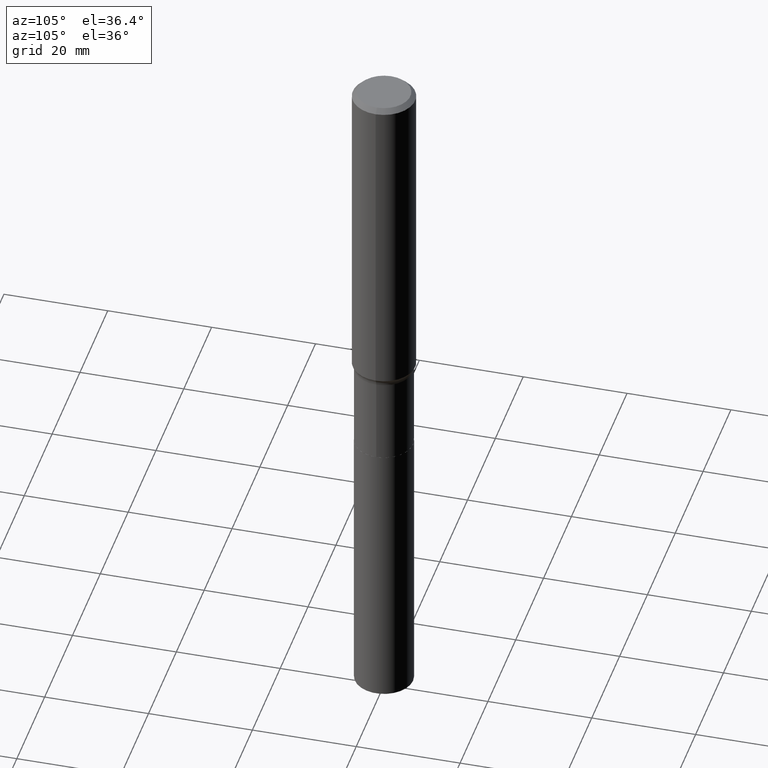
[diagram: clean part render]
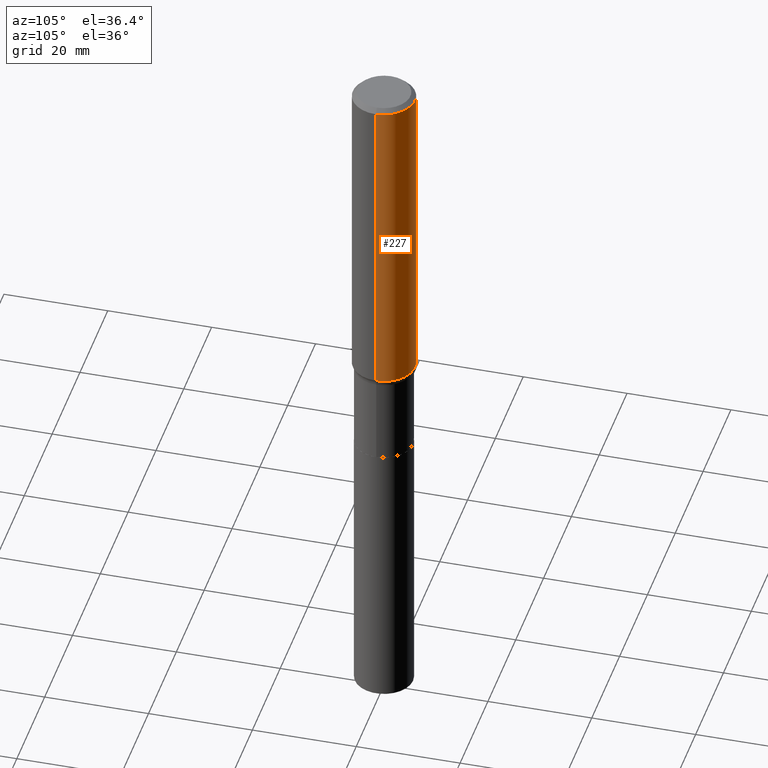
[diagram: same view with one face highlighted and labeled with its STEP entity id]
A machine part, auxiliary view. The second image highlights one B-rep face of the part: STEP entity #227.
In plain terms, the highlighted cylindrical surface (edge-blend (fillet) strip) has radius 5.9995 mm, axis along (-0, 0, 1).
Its self-contained STEP definition (entity closure, byte-faithful):
#21 = EDGE_LOOP ( 'NONE', ( #229, #195, #123, #379 ) ) ;
#32 = FACE_OUTER_BOUND ( 'NONE', #21, .T. ) ;
#37 = EDGE_CURVE ( 'NONE', #308, #263, #440, .T. ) ;
#40 = AXIS2_PLACEMENT_3D ( 'NONE', #381, #344, #48 ) ;
#48 = DIRECTION ( 'NONE',  ( 1.000000000000000000, -6.982962677686268288E-15, 0.000000000000000000 ) ) ;
#64 = CARTESIAN_POINT ( 'NONE',  ( 0.2362000000000003264, -1.023574943410652512E-14, -2.459235154463693007 ) ) ;
#74 = CARTESIAN_POINT ( 'NONE',  ( -0.2361999999999999933, -2.676736474870760158E-15, -0.03543000000000021132 ) ) ;
#104 = AXIS2_PLACEMENT_3D ( 'NONE', #382, #371, #197 ) ;
#106 = CARTESIAN_POINT ( 'NONE',  ( 0.2361999999999999933, -1.773078968304709514E-15, -0.03543000000000021132 ) ) ;
#108 = EDGE_CURVE ( 'NONE', #455, #263, #357, .T. ) ;
#123 = ORIENTED_EDGE ( 'NONE', *, *, #37, .F. ) ;
#169 = EDGE_CURVE ( 'NONE', #206, #308, #434, .T. ) ;
#171 = CYLINDRICAL_SURFACE ( 'NONE', #198, 0.2362000000000001321 ) ;
#195 = ORIENTED_EDGE ( 'NONE', *, *, #108, .T. ) ;
#197 = DIRECTION ( 'NONE',  ( 1.000000000000000000, -6.982962677686266711E-15, 0.000000000000000000 ) ) ;
#198 = AXIS2_PLACEMENT_3D ( 'NONE', #324, #246, #220 ) ;
#202 = CARTESIAN_POINT ( 'NONE',  ( 0.2362000000000001321, -1.649375784469497117E-15, 1.151752954443000789E-29 ) ) ;
#206 = VERTEX_POINT ( 'NONE', #64 ) ;
#216 = VECTOR ( 'NONE', #283, 39.37007874015748143 ) ;
#220 = DIRECTION ( 'NONE',  ( 1.000000000000000000, -6.982962677686266711E-15, 4.876176775795936353E-29 ) ) ;
#227 = ADVANCED_FACE ( 'NONE', ( #32 ), #171, .T. ) ;
#229 = ORIENTED_EDGE ( 'NONE', *, *, #450, .T. ) ;
#246 = DIRECTION ( 'NONE',  ( -2.445468806185136597E-29, 3.491481338843145583E-15, 1.000000000000000000 ) ) ;
#262 = CIRCLE ( 'NONE', #40, 0.2362000000000002986 ) ;
#263 = VERTEX_POINT ( 'NONE', #74 ) ;
#283 = DIRECTION ( 'NONE',  ( -2.445468806185136877E-29, 3.491481338843145188E-15, 1.000000000000000000 ) ) ;
#287 = VECTOR ( 'NONE', #348, 39.37007874015748143 ) ;
#308 = VERTEX_POINT ( 'NONE', #106 ) ;
#324 = CARTESIAN_POINT ( 'NONE',  ( 0.000000000000000000, 0.000000000000000000, 0.000000000000000000 ) ) ;
#344 = DIRECTION ( 'NONE',  ( -2.445468806185136597E-29, 3.491481338843145583E-15, 1.000000000000000000 ) ) ;
#348 = DIRECTION ( 'NONE',  ( -2.445468806185136877E-29, 3.491481338843145188E-15, 1.000000000000000000 ) ) ;
#355 = CARTESIAN_POINT ( 'NONE',  ( -0.2362000000000001321, 1.678301941865357577E-15, -1.161852468318209457E-29 ) ) ;
#357 = LINE ( 'NONE', #355, #287 ) ;
#371 = DIRECTION ( 'NONE',  ( -2.445468806185136597E-29, 3.491481338843145583E-15, 1.000000000000000000 ) ) ;
#379 = ORIENTED_EDGE ( 'NONE', *, *, #169, .F. ) ;
#381 = CARTESIAN_POINT ( 'NONE',  ( 6.013982857314848036E-29, -8.586373649637023862E-15, -2.459235154463693007 ) ) ;
#382 = CARTESIAN_POINT ( 'NONE',  ( 8.664295980313991736E-31, -1.237031838352133832E-16, -0.03543000000000021132 ) ) ;
#416 = CARTESIAN_POINT ( 'NONE',  ( -0.2362000000000003264, -6.908071707771664312E-15, -2.459235154463693007 ) ) ;
#434 = LINE ( 'NONE', #202, #216 ) ;
#440 = CIRCLE ( 'NONE', #104, 0.2361999999999999933 ) ;
#450 = EDGE_CURVE ( 'NONE', #206, #455, #262, .T. ) ;
#455 = VERTEX_POINT ( 'NONE', #416 ) ;